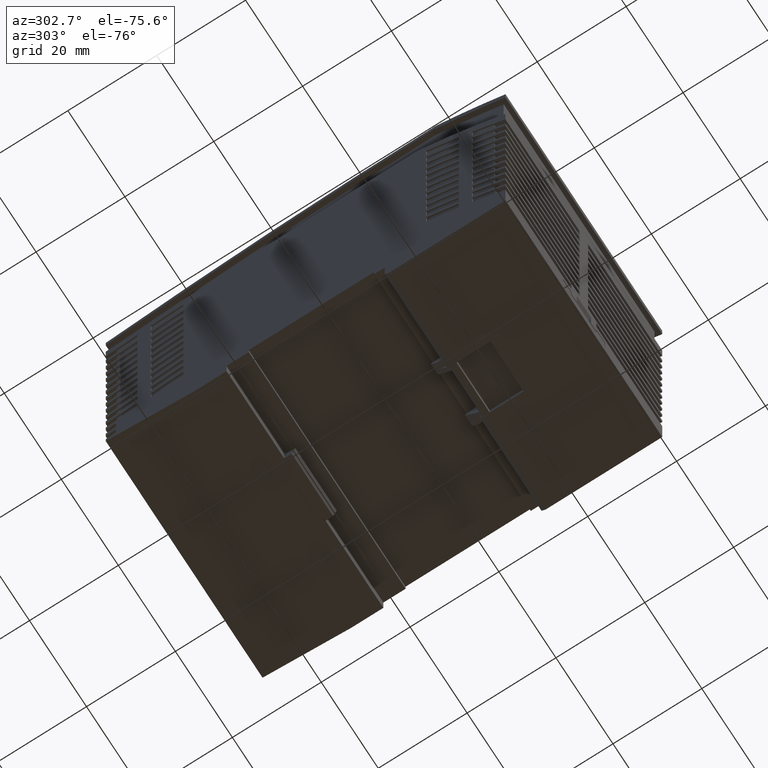
[diagram: clean part render]
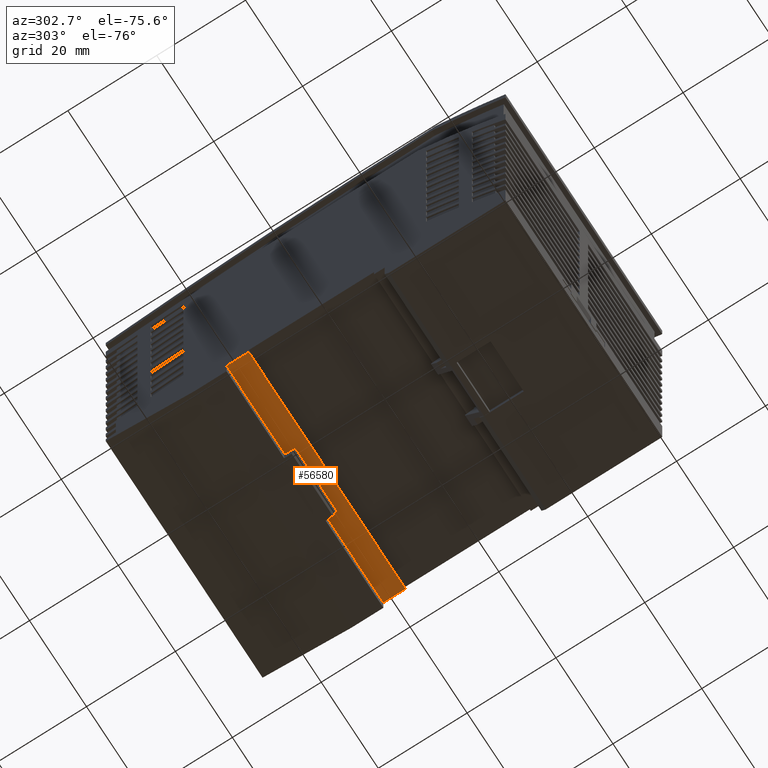
[diagram: same view with one face highlighted and labeled with its STEP entity id]
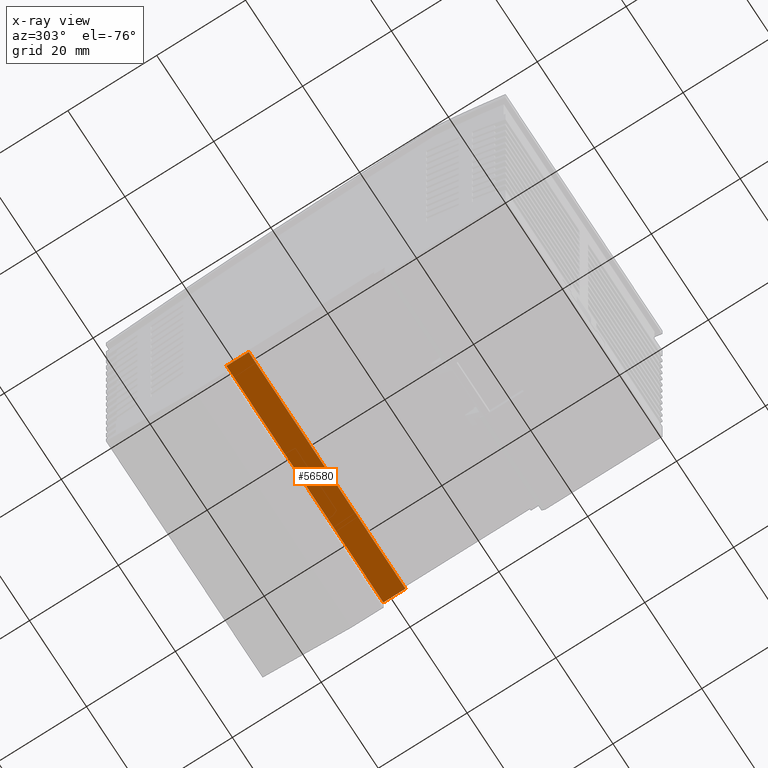
[diagram: x-ray of the same camera — body ghosted, the highlighted face saturated]
A machine part, auxiliary view. The second image highlights one B-rep face of the part: STEP entity #56580.
The next image is the same camera in x-ray: the body ghosted, the highlighted face saturated — about 0% of this face is hidden behind the body in this view.
In plain terms, the highlighted planar face has unit normal (0, 0, 1).
Its self-contained STEP definition (entity closure, byte-faithful):
#22140=CARTESIAN_POINT('',(12.7984763926468,6.02907227621137,-54.));
#22150=VERTEX_POINT('',#22140);
#22180=CARTESIAN_POINT('',(12.7984763926468,6.02907227621137,-54.));
#22190=DIRECTION('',(1.,0.,0.));
#22200=VECTOR('',#22190,1.);
#22210=LINE('',#22180,#22200);
#22220=CARTESIAN_POINT('',(17.7984763926468,6.02907227621137,-54.));
#22230=VERTEX_POINT('',#22220);
#22240=EDGE_CURVE('',#22150,#22230,#22210,.T.);
#45030=CARTESIAN_POINT('',(17.7984763926468,6.02907227621137,1.));
#45040=VERTEX_POINT('',#45030);
#45070=CARTESIAN_POINT('',(0.,6.02907227621137,1.));
#45080=DIRECTION('',(1.,0.,0.));
#45090=VECTOR('',#45080,1.);
#45100=LINE('',#45070,#45090);
#45110=CARTESIAN_POINT('',(12.7984763926468,6.02907227621137,1.));
#45120=VERTEX_POINT('',#45110);
#45130=EDGE_CURVE('',#45120,#45040,#45100,.T.);
#55770=CARTESIAN_POINT('',(12.7984763926468,6.02907227621137,0.));
#55780=DIRECTION('',(0.,0.,1.));
#55790=VECTOR('',#55780,1.);
#55800=LINE('',#55770,#55790);
#55810=EDGE_CURVE('',#22150,#45120,#55800,.T.);
#56420=CARTESIAN_POINT('',(12.7984763926468,6.02907227621137,-54.));
#56430=DIRECTION('',(0.,1.,-0.));
#56440=DIRECTION('',(-1.,0.,0.));
#56450=AXIS2_PLACEMENT_3D('',#56420,#56430,#56440);
#56460=PLANE('',#56450);
#56470=ORIENTED_EDGE('',*,*,#22240,.T.);
#56480=ORIENTED_EDGE('',*,*,#55810,.F.);
#56490=ORIENTED_EDGE('',*,*,#45130,.F.);
#56500=CARTESIAN_POINT('',(17.7984763926468,6.02907227621137,0.));
#56510=DIRECTION('',(0.,0.,1.));
#56520=VECTOR('',#56510,1.);
#56530=LINE('',#56500,#56520);
#56540=EDGE_CURVE('',#22230,#45040,#56530,.T.);
#56550=ORIENTED_EDGE('',*,*,#56540,.T.);
#56560=EDGE_LOOP('',(#56550,#56490,#56480,#56470));
#56570=FACE_OUTER_BOUND('',#56560,.T.);
#56580=ADVANCED_FACE('',(#56570),#56460,.F.);